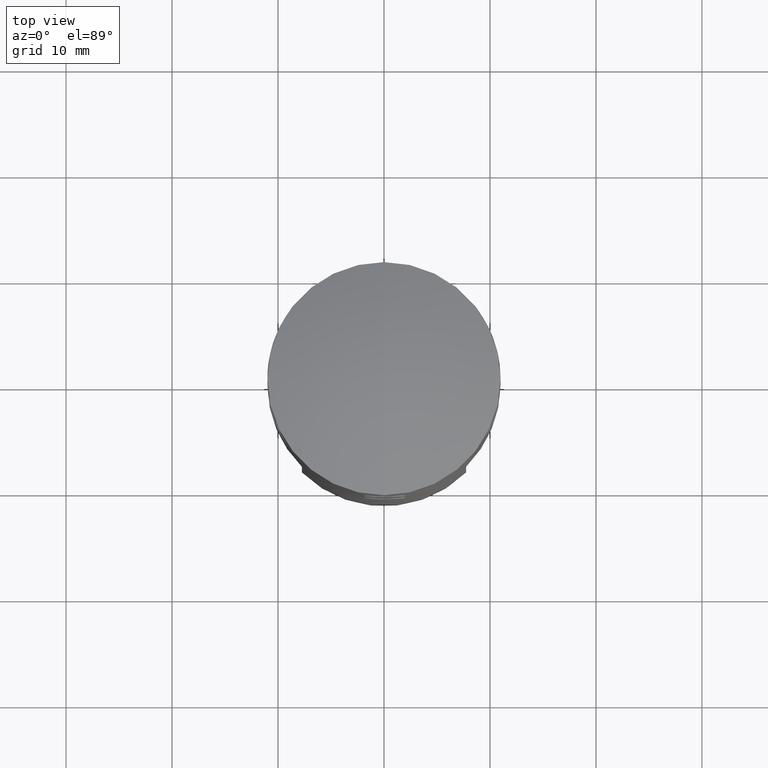
[diagram: clean part render]
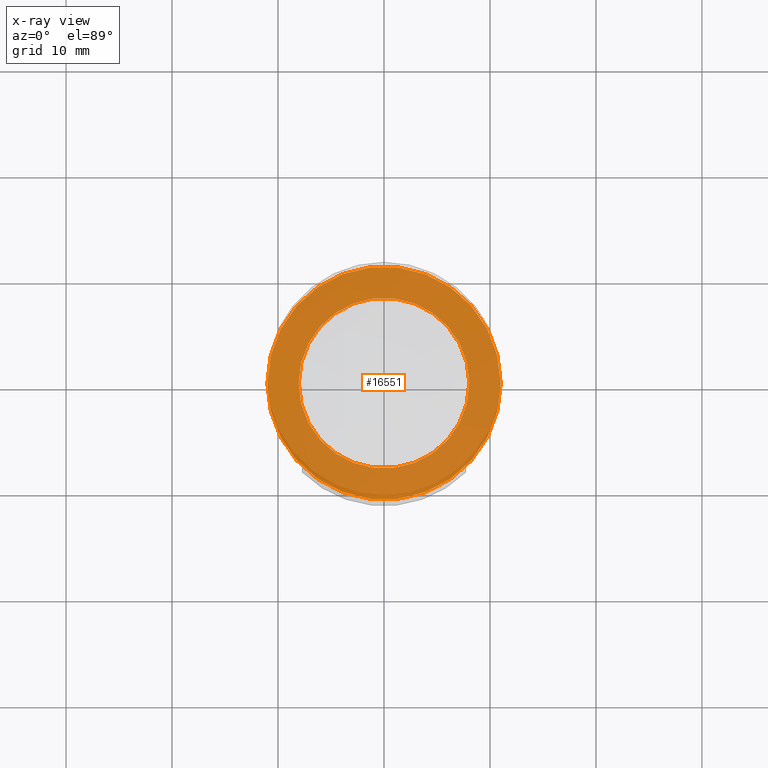
[diagram: x-ray — body ghosted, one internal face saturated and labeled with its STEP entity id]
A machine part, top view, then the same camera in x-ray: the body is ghosted and one INTERNAL B-rep face — a face not visible from any outside direction — is saturated and labeled: STEP entity #16551.
In plain terms, the highlighted planar face has unit normal (0, 0, 1).
Its self-contained STEP definition (entity closure, byte-faithful):
#280 = ORIENTED_EDGE ( 'NONE', *, *, #1940, .F. ) ;
#727 = CARTESIAN_POINT ( 'NONE',  ( 0.000000000000000000, 0.000000000000000000, -13.34999999999999964 ) ) ;
#1046 = AXIS2_PLACEMENT_3D ( 'NONE', #6387, #4910, #8809 ) ;
#1315 = VERTEX_POINT ( 'NONE', #13797 ) ;
#1940 = EDGE_CURVE ( 'NONE', #1315, #4395, #2028, .T. ) ;
#1971 = ORIENTED_EDGE ( 'NONE', *, *, #3038, .T. ) ;
#2028 = CIRCLE ( 'NONE', #1046, 10.99999999999999822 ) ;
#2402 = DIRECTION ( 'NONE',  ( -0.000000000000000000, -0.000000000000000000, 1.000000000000000000 ) ) ;
#3015 = EDGE_CURVE ( 'NONE', #10506, #14029, #15411, .T. ) ;
#3038 = EDGE_CURVE ( 'NONE', #14029, #10506, #10445, .T. ) ;
#3173 = CIRCLE ( 'NONE', #6649, 10.99999999999999822 ) ;
#3221 = AXIS2_PLACEMENT_3D ( 'NONE', #14468, #7680, #10571 ) ;
#3693 = PLANE ( 'NONE',  #11996 ) ;
#4095 = EDGE_LOOP ( 'NONE', ( #7549, #280 ) ) ;
#4395 = VERTEX_POINT ( 'NONE', #16262 ) ;
#4428 = FACE_BOUND ( 'NONE', #7729, .T. ) ;
#4910 = DIRECTION ( 'NONE',  ( -0.000000000000000000, -0.000000000000000000, 1.000000000000000000 ) ) ;
#5015 = DIRECTION ( 'NONE',  ( 1.000000000000000000, 0.000000000000000000, 0.000000000000000000 ) ) ;
#5247 = FACE_OUTER_BOUND ( 'NONE', #4095, .T. ) ;
#6387 = CARTESIAN_POINT ( 'NONE',  ( 0.000000000000000000, 0.000000000000000000, -13.34999999999999964 ) ) ;
#6398 = DIRECTION ( 'NONE',  ( 1.000000000000000000, 0.000000000000000000, 0.000000000000000000 ) ) ;
#6649 = AXIS2_PLACEMENT_3D ( 'NONE', #727, #7233, #9961 ) ;
#7233 = DIRECTION ( 'NONE',  ( -0.000000000000000000, -0.000000000000000000, 1.000000000000000000 ) ) ;
#7549 = ORIENTED_EDGE ( 'NONE', *, *, #16929, .F. ) ;
#7680 = DIRECTION ( 'NONE',  ( -0.000000000000000000, -0.000000000000000000, 1.000000000000000000 ) ) ;
#7729 = EDGE_LOOP ( 'NONE', ( #1971, #12653 ) ) ;
#8809 = DIRECTION ( 'NONE',  ( 1.000000000000000000, 0.000000000000000000, 0.000000000000000000 ) ) ;
#9961 = DIRECTION ( 'NONE',  ( 1.000000000000000000, 0.000000000000000000, 0.000000000000000000 ) ) ;
#10347 = CARTESIAN_POINT ( 'NONE',  ( 0.000000000000000000, 0.000000000000000000, -13.34999999999999964 ) ) ;
#10445 = CIRCLE ( 'NONE', #11237, 8.049999999999998934 ) ;
#10506 = VERTEX_POINT ( 'NONE', #12238 ) ;
#10571 = DIRECTION ( 'NONE',  ( 1.000000000000000000, 0.000000000000000000, 0.000000000000000000 ) ) ;
#11237 = AXIS2_PLACEMENT_3D ( 'NONE', #10347, #2402, #6398 ) ;
#11700 = DIRECTION ( 'NONE',  ( 0.000000000000000000, -0.000000000000000000, 1.000000000000000000 ) ) ;
#11996 = AXIS2_PLACEMENT_3D ( 'NONE', #12997, #11700, #5015 ) ;
#12238 = CARTESIAN_POINT ( 'NONE',  ( 8.049999999999998934, 9.858406733136192443E-16, -13.34999999999999964 ) ) ;
#12653 = ORIENTED_EDGE ( 'NONE', *, *, #3015, .T. ) ;
#12997 = CARTESIAN_POINT ( 'NONE',  ( 0.000000000000000000, 7.049999999999999822, -13.34999999999999964 ) ) ;
#13797 = CARTESIAN_POINT ( 'NONE',  ( -10.99999999999999822, 1.347111479062088207E-15, -13.34999999999999964 ) ) ;
#14029 = VERTEX_POINT ( 'NONE', #15227 ) ;
#14468 = CARTESIAN_POINT ( 'NONE',  ( 0.000000000000000000, 0.000000000000000000, -13.34999999999999964 ) ) ;
#15227 = CARTESIAN_POINT ( 'NONE',  ( -8.049999999999998934, 0.000000000000000000, -13.34999999999999964 ) ) ;
#15411 = CIRCLE ( 'NONE', #3221, 8.049999999999998934 ) ;
#16262 = CARTESIAN_POINT ( 'NONE',  ( 10.99999999999999822, 0.000000000000000000, -13.34999999999999964 ) ) ;
#16551 = ADVANCED_FACE ( 'NONE', ( #4428, #5247 ), #3693, .F. ) ;
#16929 = EDGE_CURVE ( 'NONE', #4395, #1315, #3173, .T. ) ;